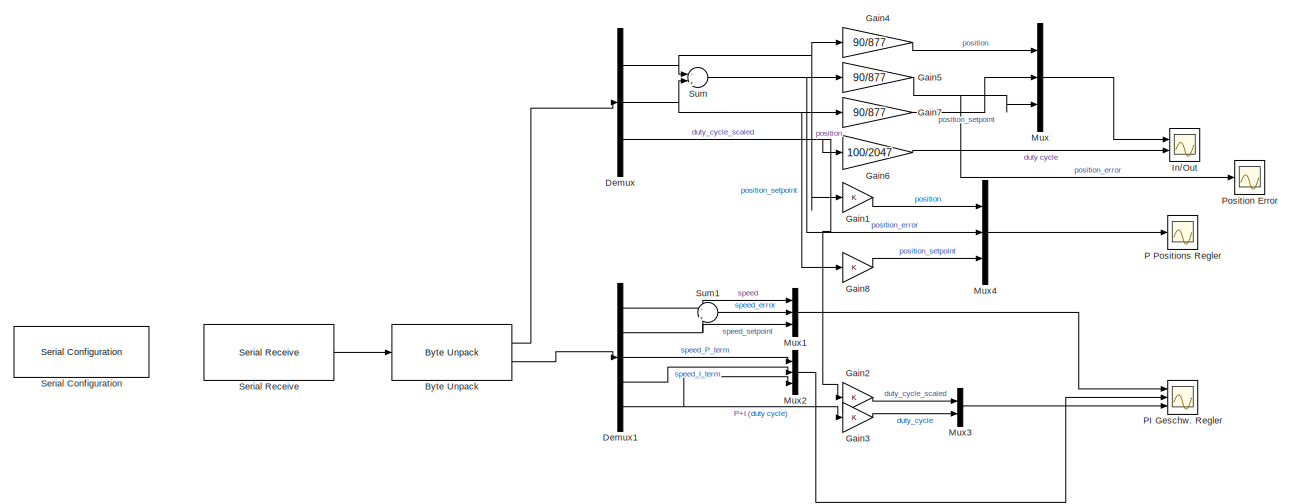
[diagram: root canvas - part 1/2, full width, top band]
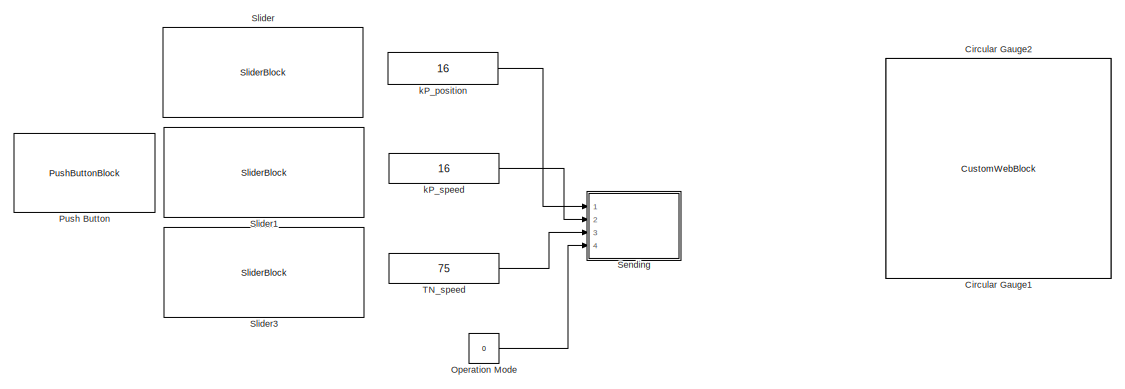
[diagram: root canvas - part 2/2, full width, bottom band]
MODEL slx_beccbdb5dda4
KIND model
CONFIG AbsTol = auto
CONFIG EnableMultiTasking = off
CONFIG FixedStep = auto
CONFIG MaxStep = auto
CONFIG MinStep = auto
CONFIG RelTol = 1e-3
CONFIG SampleTimeConstraint = Unconstrained
CONFIG SolverName = VariableStepAuto
CONFIG StartTime = 0.0
CONFIG StopTime = Inf
BLOCK [Reference] Byte Unpack   REF=etargetslib/Byte Unpack
  Ports = [1, 2]
  SourceBlock = etargetslib/Byte Unpack
  SourceProductBaseCode = ME
  SourceType = Byte Unpack
BLOCK [CustomWebBlock] Circular Gauge1
  Configuration = {"components":[{"name":"CircularScaleComponent","settings":{"bounds":{"max":90,"min":0,"tickInterval":15},"direction":"cw","flipLimits":0,"innerRadius":0.75,"internalTickHeightScaleFactor":1,"labelColor":[0,0,0],"labelFont":{"font":"Arial","fontSize":12},"labelRadius":0.675074070010099,"labelTransparency":1,"minorTickHeightScaleFactor":0.2,"needleImage":{"size":[200,50],"src":"data:image\/svg+xml;...<+2226ch>
  LabelPosition = Hide
  ShowInitialText = on
BLOCK [CustomWebBlock] Circular Gauge2
  Configuration = {"components":[{"name":"CircularScaleComponent","settings":{"bounds":{"max":90,"min":0,"tickInterval":15},"direction":"cw","flipLimits":0,"innerRadius":0.75,"internalTickHeightScaleFactor":1,"labelColor":[0,0,0],"labelFont":{"font":"Arial","fontSize":12},"labelRadius":0.675074070010099,"labelTransparency":1,"minorTickHeightScaleFactor":0.2,"needleImage":{"size":[200,50],"src":"data:image\/png;base...<+2156ch>
  LabelPosition = Hide
  ShowInitialText = on
BLOCK [Demux] Demux
  Outputs = 3
  Ports = [1, 3]
BLOCK [Demux] Demux1
  Outputs = 5
  Ports = [1, 5]
BLOCK [Gain] Gain1
  OutDataTypeStr = int32
BLOCK [Gain] Gain2
  OutDataTypeStr = int32
BLOCK [Gain] Gain3
  OutDataTypeStr = int32
BLOCK [Gain] Gain4
  Gain = 90/877
  OutDataTypeStr = double
  RndMeth = Nearest
BLOCK [Gain] Gain5
  Gain = 90/877
  OutDataTypeStr = double
  RndMeth = Nearest
BLOCK [Gain] Gain6
  Gain = 100/2047
  OutDataTypeStr = double
BLOCK [Gain] Gain7
  Gain = 90/877
  OutDataTypeStr = double
  RndMeth = Nearest
BLOCK [Gain] Gain8
  OutDataTypeStr = int32
BLOCK [Scope] In//Out
  Floating = off
  NumInputPorts = 2
  Ports = [2]
  ScopeSpecificationString = Simulink.scopes.TimeScopeBlockCfg('CurrentConfiguration', extmgr.ConfigurationSet(extmgr.Configuration('Core','General UI',true,'ShowStatusbar',false),extmgr.Configuration('Core','Source UI',true),extmgr.Configuration('Sources','WiredSimulink',true),extmgr.Configuration('Visuals','Time Domain',true,'SerializedDisplays',{struct('MinYLimReal','-10.21099','MaxYLimReal','101.13495','YLabelReal','Angle...<+2437ch>
BLOCK [Mux] Mux
  DisplayOption = bar
  Inputs = 3
  Ports = [3, 1]
BLOCK [Mux] Mux1
  DisplayOption = bar
  Inputs = 3
  Ports = [3, 1]
BLOCK [Mux] Mux2
  DisplayOption = bar
  Inputs = 3
  Ports = [3, 1]
BLOCK [Mux] Mux3
  DisplayOption = bar
  Inputs = 2
  Ports = [2, 1]
BLOCK [Mux] Mux4
  DisplayOption = bar
  Inputs = 3
  Ports = [3, 1]
BLOCK [Constant] Operation Mode
  OutDataTypeStr = uint8
  Value = 0
BLOCK [Scope] P Positions Regler
  Floating = off
  NumInputPorts = 1
  Ports = [1]
  ScopeSpecificationString = Simulink.scopes.TimeScopeBlockCfg('CurrentConfiguration', extmgr.ConfigurationSet(extmgr.Configuration('Core','General UI',true,'ShowStatusbar',false),extmgr.Configuration('Core','Source UI',true),extmgr.Configuration('Sources','WiredSimulink',true,'DataLoggingVariableName','ScopeData1'),extmgr.Configuration('Visuals','Time Domain',true,'SerializedDisplays',{struct('MinYLimReal','57.77078','MaxYLi...<+1857ch>
BLOCK [Scope] PI Geschw. Regler
  Floating = off
  NumInputPorts = 3
  Ports = [3]
  ScopeSpecificationString = Simulink.scopes.TimeScopeBlockCfg('CurrentConfiguration', extmgr.ConfigurationSet(extmgr.Configuration('Core','General UI',true),extmgr.Configuration('Core','Source UI',true),extmgr.Configuration('Sources','WiredSimulink',true,'DataLoggingVariableName','ScopeData1'),extmgr.Configuration('Visuals','Time Domain',true,'SerializedDisplays',{struct('MinYLimReal','-14221.25','MaxYLimReal','3031.25','YLa...<+3278ch>
BLOCK [Scope] Position Error
  Floating = off
  NumInputPorts = 1
  Ports = [1]
  ScopeSpecificationString = Simulink.scopes.TimeScopeBlockCfg('CurrentConfiguration', extmgr.ConfigurationSet(extmgr.Configuration('Core','General UI',true,'ShowStatusbar',false),extmgr.Configuration('Core','Source UI',true),extmgr.Configuration('Sources','WiredSimulink',true,'DataLoggingVariableName','ScopeData2'),extmgr.Configuration('Visuals','Time Domain',true,'SerializedDisplays',{struct('MinYLimReal','-.5','MaxYLimReal...<+1834ch>
BLOCK [PushButtonBlock] Push Button
  ButtonText = Send
  OffValue = 0.000000
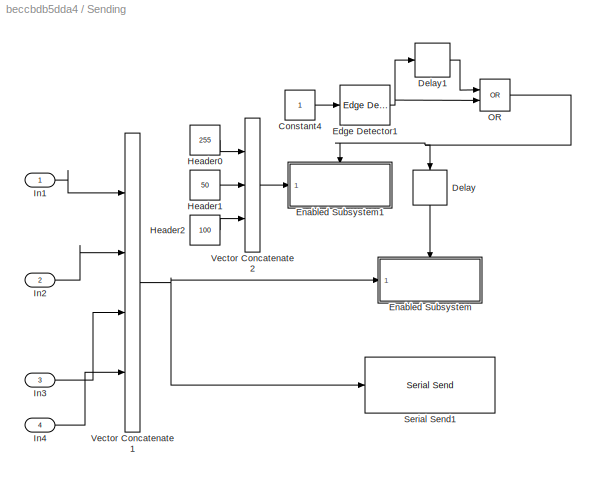
BLOCK [SubSystem] Sending
  Ports = [4]
  RequestExecContextInheritance = off
BLOCK [Constant] Sending/Constant4
BLOCK [Delay] Sending/Delay
  Commented = through
  DelayLength = 5
  InputPortMap = u0
  NameLocation = left
  Ports = [1, 1]
BLOCK [Delay] Sending/Delay1
  DelayLength = 5
  InputPortMap = u0
  Ports = [1, 1]
BLOCK [Reference] Sending/Edge Detector1  REF=dspswit3/Edge
Detector
  Ports = [1, 1]
  SourceBlock = dspswit3/Edge\nDetector
  SourceProductBaseCode = DS
  SourceType = Edge Detector
  UserDataPersistent = on
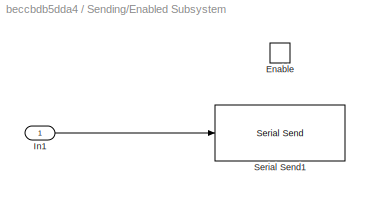
BLOCK [SubSystem] Sending/Enabled Subsystem
  Ports = [1, 0, 1]
  RequestExecContextInheritance = off
  TreatAsAtomicUnit = on
BLOCK [EnablePort] Sending/Enabled Subsystem/Enable
  Ports = []
BLOCK [Inport] Sending/Enabled Subsystem/In1
BLOCK [Reference] Sending/Enabled Subsystem/Serial Send1  REF=instrumentseriallib/Serial Send
  Ports = [1]
  Priority = 1
  SourceBlock = instrumentseriallib/Serial Send
  SourceProductBaseCode = OT,IC,MT
  SourceType = system.SerialSend
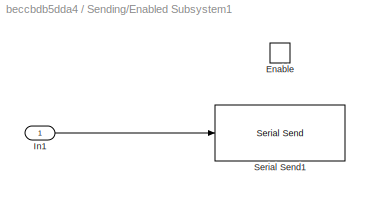
BLOCK [SubSystem] Sending/Enabled Subsystem1
  Ports = [1, 0, 1]
  RequestExecContextInheritance = off
  TreatAsAtomicUnit = on
BLOCK [EnablePort] Sending/Enabled Subsystem1/Enable
  Ports = []
BLOCK [Inport] Sending/Enabled Subsystem1/In1
BLOCK [Reference] Sending/Enabled Subsystem1/Serial Send1  REF=instrumentseriallib/Serial Send
  Ports = [1]
  Priority = 1
  SourceBlock = instrumentseriallib/Serial Send
  SourceProductBaseCode = OT,IC,MT
  SourceType = system.SerialSend
BLOCK [Constant] Sending/Header0
  OutDataTypeStr = uint8
  Value = 255
BLOCK [Constant] Sending/Header1
  OutDataTypeStr = uint8
  Value = 50
BLOCK [Constant] Sending/Header2
  OutDataTypeStr = uint8
  Value = 100
BLOCK [Inport] Sending/In1
BLOCK [Inport] Sending/In2
  Port = 2
BLOCK [Inport] Sending/In3
  Port = 3
BLOCK [Inport] Sending/In4
  Port = 4
BLOCK [Logic] Sending/OR
  AllPortsSameDT = off
  IconShape = distinctive
  Operator = OR
  OutDataTypeStr = boolean
  Ports = [2, 1]
BLOCK [Reference] Sending/Serial Send1  REF=instrumentseriallib/Serial Send
  Commented = on
  Ports = [1]
  Priority = 1
  SourceBlock = instrumentseriallib/Serial Send
  SourceProductBaseCode = OT,IC,MT
  SourceType = system.SerialSend
BLOCK [Concatenate] Sending/Vector Concatenate1
  NumInputs = 4
  Ports = [4, 1]
BLOCK [Concatenate] Sending/Vector Concatenate2
  NumInputs = 3
  Ports = [3, 1]
BLOCK [Reference] Serial Configuration   REF=instrumentseriallib/Serial Configuration
  Ports = []
  Priority = -200000
  SourceBlock = instrumentseriallib/Serial Configuration
  SourceProductBaseCode = OT,IC,MT
  SourceType = system.SerialConfiguration
BLOCK [Reference] Serial Receive   REF=instrumentseriallib/Serial Receive
  Ports = [0, 1]
  Priority = 1
  SourceBlock = instrumentseriallib/Serial Receive
  SourceProductBaseCode = OT,IC,MT
  SourceType = system.SerialReceive
BLOCK [SliderBlock] Slider
  ScaleMax = 254
BLOCK [SliderBlock] Slider1
  ScaleMax = 254
BLOCK [SliderBlock] Slider3
  ScaleMax = 254
BLOCK [Sum] Sum
  AccumDataTypeStr = int16
  Inputs = -|+
  OutDataTypeStr = int32
  Ports = [2, 1]
BLOCK [Sum] Sum1
  AccumDataTypeStr = int16
  Inputs = -|+
  OutDataTypeStr = int16
  Ports = [2, 1]
BLOCK [Constant] TN_speed
  OutDataTypeStr = uint8
  Value = 75
BLOCK [Constant] kP_position
  OutDataTypeStr = uint8
  Value = 16
BLOCK [Constant] kP_speed
  OutDataTypeStr = uint8
  Value = 16
LINE Byte Unpack :1 -> Demux:1
LINE Byte Unpack :2 -> Demux1:1
NET Demux1:1 -> Mux1:1, Sum1:1
NET Demux1:2 -> Mux1:3, Sum1:2
LINE Demux1:3 -> Mux2:1
LINE Demux1:4 -> Mux2:2
NET Demux1:5 -> Gain3:1, Mux2:3
NET Demux:1 -> Gain1:1, Gain4:1, Sum:1
NET Demux:2 -> Gain7:1, Gain8:1, Sum:2
NET Demux:3 -> Gain2:1, Gain6:1
LINE Gain1:1 -> Mux4:1
LINE Gain2:1 -> Mux3:1
LINE Gain3:1 -> Mux3:2
LINE Gain4:1 -> Mux:1
NET Gain5:1 -> Mux:3, Position Error:1
LINE Gain6:1 -> In//Out:2
LINE Gain7:1 -> Mux:2
LINE Gain8:1 -> Mux4:3
LINE Mux1:1 -> PI Geschw. Regler:1
LINE Mux2:1 -> PI Geschw. Regler:2
LINE Mux3:1 -> PI Geschw. Regler:3
LINE Mux4:1 -> P Positions Regler:1
LINE Mux:1 -> In//Out:1
LINE Operation Mode:1 -> Sending:4
LINE Sending/Constant4:1 -> Sending/Edge Detector1:1
LINE Sending/Delay1:1 -> Sending/OR:1
LINE Sending/Delay:1 -> Sending/Enabled Subsystem:enable
NET Sending/Edge Detector1:1 -> Sending/Delay1:1, Sending/OR:2
LINE Sending/Enabled Subsystem/In1:1 -> Sending/Enabled Subsystem/Serial Send1:1
LINE Sending/Enabled Subsystem1/In1:1 -> Sending/Enabled Subsystem1/Serial Send1:1
LINE Sending/Header0:1 -> Sending/Vector Concatenate2:1
LINE Sending/Header1:1 -> Sending/Vector Concatenate2:2
LINE Sending/Header2:1 -> Sending/Vector Concatenate2:3
LINE Sending/In1:1 -> Sending/Vector Concatenate1:1
LINE Sending/In2:1 -> Sending/Vector Concatenate1:2
LINE Sending/In3:1 -> Sending/Vector Concatenate1:3
LINE Sending/In4:1 -> Sending/Vector Concatenate1:4
NET Sending/OR:1 -> Sending/Delay:1, Sending/Enabled Subsystem1:enable
NET Sending/Vector Concatenate1:1 -> Sending/Enabled Subsystem:1, Sending/Serial Send1:1
LINE Sending/Vector Concatenate2:1 -> Sending/Enabled Subsystem1:1
LINE Serial Receive :1 -> Byte Unpack :1
LINE Sum1:1 -> Mux1:2
NET Sum:1 -> Gain5:1, Mux4:2
LINE TN_speed:1 -> Sending:3
LINE kP_position:1 -> Sending:1
LINE kP_speed:1 -> Sending:2
note: NET lines group one-source signal fan-out (src -> all destinations, sorted); 1:1 wires keep LINE
